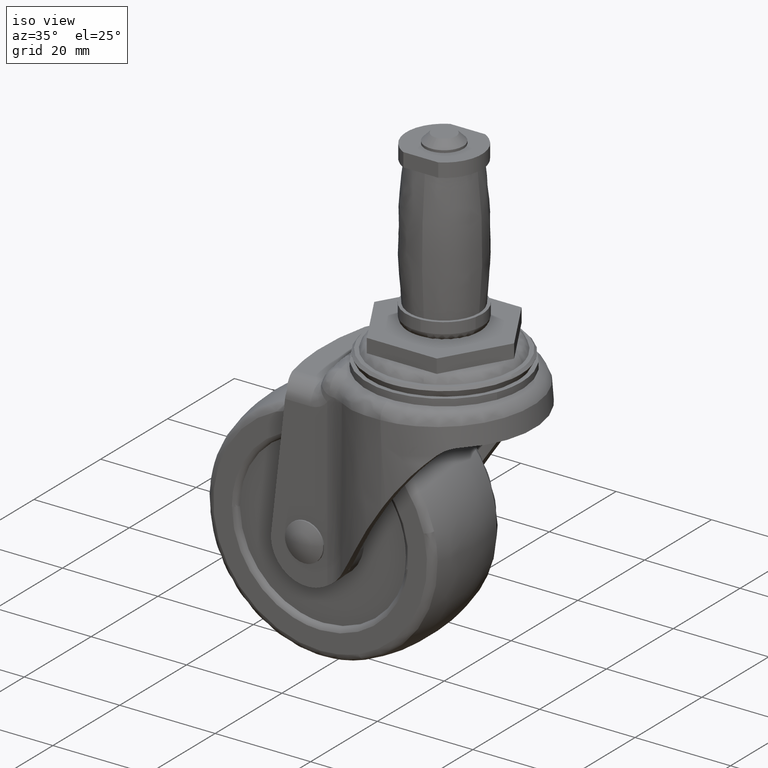
[diagram: clean part render]
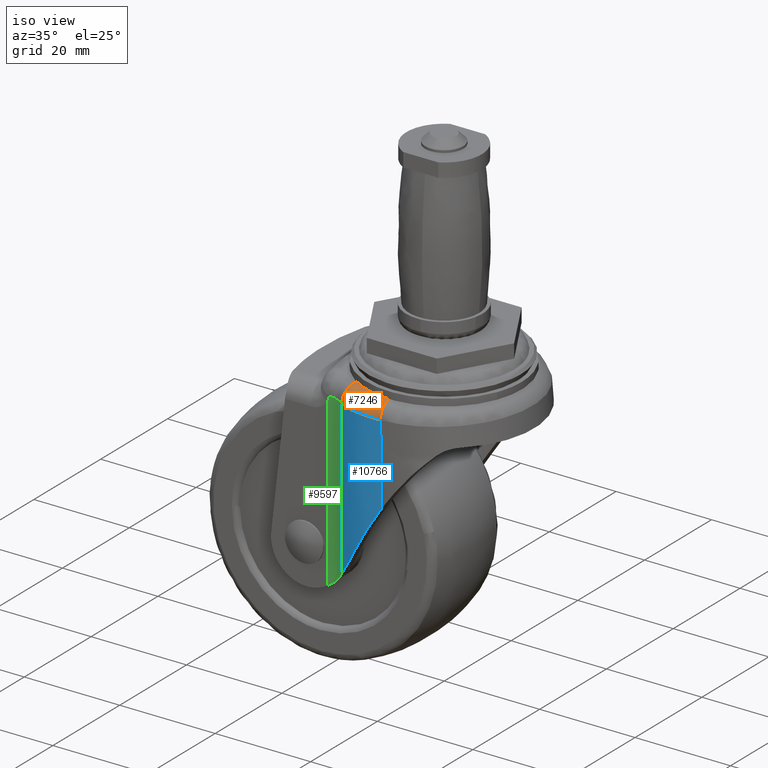
[diagram: same view with three faces highlighted in distinct colors, each labeled with its STEP entity id]
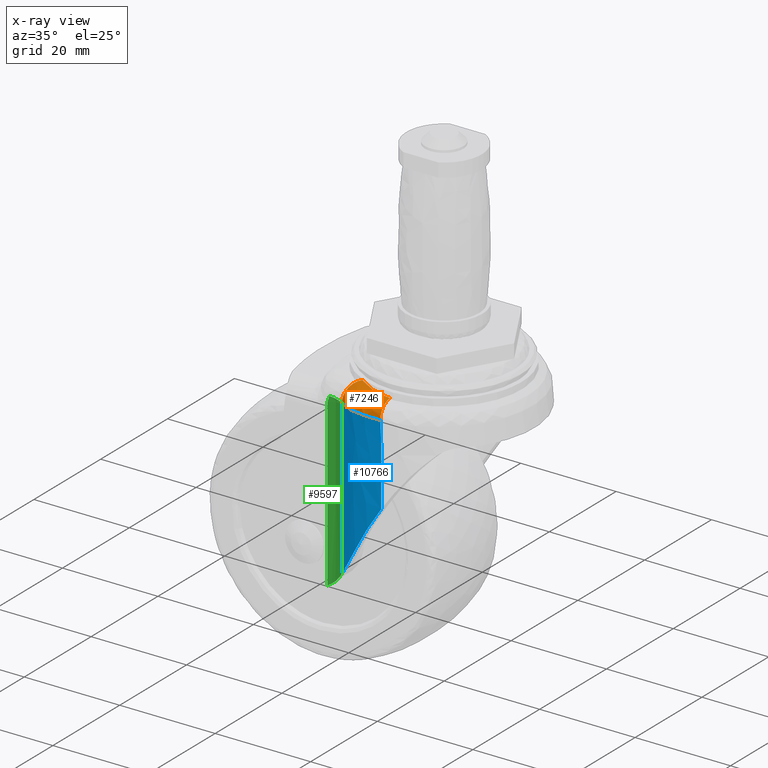
[diagram: x-ray of the same camera — body ghosted, the three highlighted faces saturated]
A machine part, iso view with three faces highlighted in distinct colors.
The next image is the same camera in x-ray (body ghosted, the three faces saturated) — at least one of them is partly hidden behind the body in this view.
Their STEP definitions:

[orange] entity #7246 — the highlighted face is a freeform B-spline surface patch.
#6770=CARTESIAN_POINT('',(-8.383213030865608,-12.559134390715680,-7.312300000000000));
#6771=VERTEX_POINT('',#6770);
#6785=CARTESIAN_POINT('',(-0.211372370271914,-15.849068563117299,-7.312300000000000));
#6786=VERTEX_POINT('',#6785);
#6787=CARTESIAN_POINT('',(-8.383213030865608,-12.559134390715680,-7.312300000000000));
#6788=CARTESIAN_POINT('',(-7.177303485113759,-13.364169880310939,-7.312300000000000));
#6789=CARTESIAN_POINT('',(-5.931820626869783,-14.168832538087489,-7.312300000000000));
#6790=CARTESIAN_POINT('',(-3.206027616540357,-15.399567878791959,-7.312300000000000));
#6791=CARTESIAN_POINT('',(-1.727469260014034,-15.824081219986789,-7.312300000000000));
#6792=CARTESIAN_POINT('',(-0.211372370271914,-15.849068563117299,-7.312300000000000));
#6793=B_SPLINE_CURVE_WITH_KNOTS('',3,(#6787,#6788,#6789,#6790,#6791,#6792),.UNSPECIFIED.,.F.,.U.,(4,2,4),(4.123810566571690,4.413260678950739,4.699069848030900),.UNSPECIFIED.);
#6794=EDGE_CURVE('',#6771,#6786,#6793,.T.);
#7000=CARTESIAN_POINT('',(-0.182389769335353,-18.849117659007849,-10.311114480009820));
#7001=VERTEX_POINT('',#7000);
#7002=CARTESIAN_POINT('',(-0.211372370271914,-15.849068563117299,-7.312300000000000));
#7003=CARTESIAN_POINT('',(-0.210237807720999,-15.971093918524870,-7.316662462801346));
#7004=CARTESIAN_POINT('',(-0.207947425915330,-16.217430846912499,-7.325469121737921));
#7005=CARTESIAN_POINT('',(-0.204943334447242,-16.583770299314210,-7.396451074912001));
#7006=CARTESIAN_POINT('',(-0.202107572756184,-16.942324863755339,-7.510387972674353));
#7007=CARTESIAN_POINT('',(-0.199428092200904,-17.284168686451380,-7.669468358368193));
#7008=CARTESIAN_POINT('',(-0.196858523776957,-17.601151239799311,-7.868305325126562));
#7009=CARTESIAN_POINT('',(-0.194389244729560,-17.886560287248201,-8.101080240298490));
#7010=CARTESIAN_POINT('',(-0.192028983281255,-18.135590543309728,-8.360299423948787));
#7011=CARTESIAN_POINT('',(-0.189807354588066,-18.345545298661250,-8.637963601605788));
#7012=CARTESIAN_POINT('',(-0.187768511980316,-18.515809786200069,-8.926109245842845));
#7013=CARTESIAN_POINT('',(-0.185968407724384,-18.647498075961138,-9.217397641641663));
#7014=CARTESIAN_POINT('',(-0.184461483575913,-18.743369576723129,-9.505493345620364));
#7015=CARTESIAN_POINT('',(-0.183323362625738,-18.806309511330209,-9.785271845508703));
#7016=CARTESIAN_POINT('',(-0.182553966103168,-18.842593746572120,-10.052863942191131));
#7017=CARTESIAN_POINT('',(-0.182443305103757,-18.846990560710481,-10.226912816560100));
#7018=CARTESIAN_POINT('',(-0.182389769335353,-18.849117659007849,-10.311114480009820));
#7019=B_SPLINE_CURVE_WITH_KNOTS('',3,(#7002,#7003,#7004,#7005,#7006,#7007,#7008,#7009,#7010,#7011,#7012,#7013,#7014,#7015,#7016,#7017,#7018),.UNSPECIFIED.,.F.,.U.,(4,1,1,1,1,1,1,1,1,1,1,1,1,1,4),(0.0,0.077721837109960,0.156899839040538,0.236883421437833,0.316978668292258,0.396482154498442,0.474715913578643,0.551059291738069,0.624974114141771,0.696020979994494,0.763866157475353,0.828280011573778,0.889128864233390,0.946362571467610,1.0),.UNSPECIFIED.);
#7020=EDGE_CURVE('',#6786,#7001,#7019,.T.);
#7176=CARTESIAN_POINT('',(-8.404645505113363,-12.513036577988908,-7.312300000000001));
#7177=CARTESIAN_POINT('',(-8.412007231123695,-12.523995219626814,-7.312300000000001));
#7178=CARTESIAN_POINT('',(-10.510518032672005,-15.647831642658453,-7.312300000000169));
#7179=CARTESIAN_POINT('',(-10.510518032671234,-15.647831642657561,-11.075845156037758));
#7180=CARTESIAN_POINT('',(-10.510518032671227,-15.647831642657547,-11.089349841149886));
#7181=CARTESIAN_POINT('',(-7.189476776308802,-13.323878658183853,-7.312300000000032));
#7182=CARTESIAN_POINT('',(-7.195755527805120,-13.335582319549202,-7.312300000000017));
#7183=CARTESIAN_POINT('',(-8.985643025359195,-16.672055127245148,-7.312299999996218));
#7184=CARTESIAN_POINT('',(-8.985618477341054,-16.672063107347640,-11.079608263239470));
#7185=CARTESIAN_POINT('',(-8.985618389248486,-16.672063135901848,-11.093126452079231));
#7186=CARTESIAN_POINT('',(-4.682926924409720,-14.956994352687678,-7.312299999999995));
#7187=CARTESIAN_POINT('',(-4.686252410594531,-14.968575716703695,-7.312299999999998));
#7188=CARTESIAN_POINT('',(-5.634636262165720,-18.271241789137441,-7.312300000002721));
#7189=CARTESIAN_POINT('',(-5.634512387646434,-18.271279572146156,-10.699488974655573));
#7190=CARTESIAN_POINT('',(-5.634511943342250,-18.271279707746597,-10.711643184419069));
#7191=CARTESIAN_POINT('',(-1.657747194422345,-15.822461098695797,-7.312299999999989));
#7192=CARTESIAN_POINT('',(-1.658820621436504,-15.833000868710474,-7.312299999999995));
#7193=CARTESIAN_POINT('',(-1.964722226014985,-18.837171531610707,-7.312300000001407));
#7194=CARTESIAN_POINT('',(-1.964747004376250,-18.837164300826462,-10.319369691102928));
#7195=CARTESIAN_POINT('',(-1.964747093248751,-18.837164274809673,-10.330159923525841));
#7196=CARTESIAN_POINT('',(-0.107127006570412,-15.828550908517062,-7.312300000000002));
#7197=CARTESIAN_POINT('',(-0.107199372650751,-15.839112075958774,-7.312300000000001));
#7198=CARTESIAN_POINT('',(-0.127827823240223,-18.849645736444533,-7.312299999999951));
#7199=CARTESIAN_POINT('',(-0.127827823240092,-18.849645736448853,-10.323136124597239));
#7200=CARTESIAN_POINT('',(-0.127827823240091,-18.849645736448849,-10.333939872686106));
#7208=(BOUNDED_SURFACE()B_SPLINE_SURFACE(2,3,((#7176,#7181,#7186,#7191,#7196),(#7177,#7182,#7187,#7192,#7197),(#7178,#7183,#7188,#7193,#7198),(#7179,#7184,#7189,#7194,#7199),(#7180,#7185,#7190,#7195,#7200)),.UNSPECIFIED.,.F.,.F.,.U.)B_SPLINE_SURFACE_WITH_KNOTS((3,1,1,3),(4,1,4),(0.0,0.031069665313071,6.244286631818673,6.276072532132730),(0.0,5.539953928075171,11.079956358023550),.UNSPECIFIED.)GEOMETRIC_REPRESENTATION_ITEM()RATIONAL_B_SPLINE_SURFACE(((1.002929269758342,1.002929269758342,1.002929269758342,1.002929269758342,1.002929269758342),(1.001464634879171,1.001464634879171,1.001464634879171,1.001464634879171,1.001464634879171),(0.707106781186542,0.707106781186542,0.707106781186542,0.707106781186542,0.707106781186542),(1.001498398447383,1.001498398447383,1.001498398447383,1.001498398447383,1.001498398447383),(1.002996796894767,1.002996796894767,1.002996796894767,1.002996796894767,1.002996796894767)))REPRESENTATION_ITEM('')SURFACE());
#7209=CARTESIAN_POINT('',(-10.465135058398459,-15.678124719535800,-11.062300000000000));
#7210=VERTEX_POINT('',#7209);
#7211=CARTESIAN_POINT('',(-8.383213030865599,-12.559134390715659,-7.312300000000001));
#7212=CARTESIAN_POINT('',(-8.655735986992438,-12.967409270033960,-7.312300000000000));
#7213=CARTESIAN_POINT('',(-8.928151716973323,-13.375523510621401,-7.409902462493821));
#7214=CARTESIAN_POINT('',(-9.431708479583438,-14.129917119902769,-7.785601043671550));
#7215=CARTESIAN_POINT('',(-9.662651384129472,-14.475899666925580,-8.063549341006853));
#7216=CARTESIAN_POINT('',(-10.048057044742050,-15.053287538433739,-8.757749800094123));
#7217=CARTESIAN_POINT('',(-10.202368160138750,-15.284465685447280,-9.173728823609194));
#7218=CARTESIAN_POINT('',(-10.410948200636540,-15.596945749779209,-10.080745433652790));
#7219=CARTESIAN_POINT('',(-10.465135058398481,-15.678124719535800,-10.571426147876711));
#7220=CARTESIAN_POINT('',(-10.465135058398459,-15.678124719535800,-11.062300000000000));
#7221=B_SPLINE_CURVE_WITH_KNOTS('',3,(#7211,#7212,#7213,#7214,#7215,#7216,#7217,#7218,#7219,#7220),.UNSPECIFIED.,.F.,.U.,(4,2,2,2,4),(0.0,0.250000000000000,0.500000000000000,0.750000000000000,1.0),.UNSPECIFIED.);
#7222=EDGE_CURVE('',#6771,#7210,#7221,.T.);
#7223=ORIENTED_EDGE('',*,*,#7222,.T.);
#7224=CARTESIAN_POINT('',(-0.182389769335353,-18.849117659007849,-10.311114480009820));
#7225=CARTESIAN_POINT('',(-0.348100169288524,-18.846246994115649,-10.312083123256800));
#7226=CARTESIAN_POINT('',(-0.687651906391582,-18.840364808983860,-10.314067938315100));
#7227=CARTESIAN_POINT('',(-1.208505415445920,-18.813564030270999,-10.328991850013590));
#7228=CARTESIAN_POINT('',(-1.752575687250061,-18.771161671907912,-10.352498304947851));
#7229=CARTESIAN_POINT('',(-2.319229932209976,-18.709782151253609,-10.385627205157791));
#7230=CARTESIAN_POINT('',(-3.079059685756224,-18.603764950820700,-10.440185134944951));
#7231=CARTESIAN_POINT('',(-4.168193660943765,-18.400393555297210,-10.540288733840510));
#7232=CARTESIAN_POINT('',(-5.561342117924522,-18.034392253784311,-10.686703356631609));
#7233=CARTESIAN_POINT('',(-6.918735320681720,-17.552121837207888,-10.833089817916671));
#7234=CARTESIAN_POINT('',(-8.049856913622506,-17.055847099440118,-10.944763637300831));
#7235=CARTESIAN_POINT('',(-8.948434744029953,-16.598924322060590,-11.011975858877960));
#7236=CARTESIAN_POINT('',(-9.739476545350316,-16.148995440766111,-11.053846681285179));
#7237=CARTESIAN_POINT('',(-10.229575313288230,-15.830976488072171,-11.059555924700129));
#7238=CARTESIAN_POINT('',(-10.465135058398459,-15.678124719535800,-11.062300000000000));
#7239=B_SPLINE_CURVE_WITH_KNOTS('',3,(#7224,#7225,#7226,#7227,#7228,#7229,#7230,#7231,#7232,#7233,#7234,#7235,#7236,#7237,#7238),.UNSPECIFIED.,.F.,.U.,(4,1,1,1,1,1,1,1,1,1,1,1,4),(0.0,0.045439792641525,0.093109186444500,0.143021498337684,0.195188324170596,0.249619815510264,0.353870070712294,0.500009982099818,0.646119768825975,0.750400158362071,0.839838263047028,0.923020296313347,1.0),.UNSPECIFIED.);
#7240=EDGE_CURVE('',#7001,#7210,#7239,.T.);
#7241=ORIENTED_EDGE('',*,*,#7240,.F.);
#7242=ORIENTED_EDGE('',*,*,#7020,.F.);
#7243=ORIENTED_EDGE('',*,*,#6794,.F.);
#7244=EDGE_LOOP('',(#7223,#7241,#7242,#7243));
#7245=FACE_OUTER_BOUND('',#7244,.T.);
#7246=ADVANCED_FACE('',(#7245),#7208,.T.);

[blue] entity #10766 — the highlighted face is a freeform B-spline surface patch.
#7000=CARTESIAN_POINT('',(-0.182389769335353,-18.849117659007849,-10.311114480009820));
#7001=VERTEX_POINT('',#7000);
#7209=CARTESIAN_POINT('',(-10.465135058398459,-15.678124719535800,-11.062300000000000));
#7210=VERTEX_POINT('',#7209);
#7224=CARTESIAN_POINT('',(-0.182389769335353,-18.849117659007849,-10.311114480009820));
#7225=CARTESIAN_POINT('',(-0.348100169288524,-18.846246994115649,-10.312083123256800));
#7226=CARTESIAN_POINT('',(-0.687651906391582,-18.840364808983860,-10.314067938315100));
#7227=CARTESIAN_POINT('',(-1.208505415445920,-18.813564030270999,-10.328991850013590));
#7228=CARTESIAN_POINT('',(-1.752575687250061,-18.771161671907912,-10.352498304947851));
#7229=CARTESIAN_POINT('',(-2.319229932209976,-18.709782151253609,-10.385627205157791));
#7230=CARTESIAN_POINT('',(-3.079059685756224,-18.603764950820700,-10.440185134944951));
#7231=CARTESIAN_POINT('',(-4.168193660943765,-18.400393555297210,-10.540288733840510));
#7232=CARTESIAN_POINT('',(-5.561342117924522,-18.034392253784311,-10.686703356631609));
#7233=CARTESIAN_POINT('',(-6.918735320681720,-17.552121837207888,-10.833089817916671));
#7234=CARTESIAN_POINT('',(-8.049856913622506,-17.055847099440118,-10.944763637300831));
#7235=CARTESIAN_POINT('',(-8.948434744029953,-16.598924322060590,-11.011975858877960));
#7236=CARTESIAN_POINT('',(-9.739476545350316,-16.148995440766111,-11.053846681285179));
#7237=CARTESIAN_POINT('',(-10.229575313288230,-15.830976488072171,-11.059555924700129));
#7238=CARTESIAN_POINT('',(-10.465135058398459,-15.678124719535800,-11.062300000000000));
#7239=B_SPLINE_CURVE_WITH_KNOTS('',3,(#7224,#7225,#7226,#7227,#7228,#7229,#7230,#7231,#7232,#7233,#7234,#7235,#7236,#7237,#7238),.UNSPECIFIED.,.F.,.U.,(4,1,1,1,1,1,1,1,1,1,1,1,4),(0.0,0.045439792641525,0.093109186444500,0.143021498337684,0.195188324170596,0.249619815510264,0.353870070712294,0.500009982099818,0.646119768825975,0.750400158362071,0.839838263047028,0.923020296313347,1.0),.UNSPECIFIED.);
#7240=EDGE_CURVE('',#7001,#7210,#7239,.T.);
#9555=CARTESIAN_POINT('',(-10.465135058397060,-15.678124719536751,-43.384241657274302));
#9556=VERTEX_POINT('',#9555);
#9557=CARTESIAN_POINT('',(-10.465135058398459,-15.678124719535800,-11.062300000000000));
#9558=CARTESIAN_POINT('',(-10.465135058397060,-15.678124719536751,-43.384241657274302));
#9559=QUASI_UNIFORM_CURVE('',1,(#9557,#9558),.UNSPECIFIED.,.F.,.U.);
#9560=EDGE_CURVE('',#7210,#9556,#9559,.T.);
#10507=CARTESIAN_POINT('',(-0.000006999999924,-18.850000000000001,-14.777769023008300));
#10508=VERTEX_POINT('',#10507);
#10509=CARTESIAN_POINT('',(-0.000006999999924,-18.850000000000001,-14.777769023008300));
#10510=CARTESIAN_POINT('',(-0.091200518985394,-18.850000000000001,-12.544389480890827));
#10511=CARTESIAN_POINT('',(-0.182389769335353,-18.849117659007849,-10.311114480009820));
#10519=(BOUNDED_CURVE()B_SPLINE_CURVE(2,(#10509,#10510,#10511),.UNSPECIFIED.,.F.,.U.)CURVE()GEOMETRIC_REPRESENTATION_ITEM()QUASI_UNIFORM_CURVE()RATIONAL_B_SPLINE_CURVE((1.0,0.999988297787741,1.0))REPRESENTATION_ITEM(''));
#10520=EDGE_CURVE('',#10508,#7001,#10519,.T.);
#10689=CARTESIAN_POINT('',(-0.000006999999927,-18.850000000000001,-27.160310200695349));
#10690=VERTEX_POINT('',#10689);
#10691=CARTESIAN_POINT('',(-0.000006999999927,-18.850000000000001,-27.160310200695349));
#10692=CARTESIAN_POINT('',(-0.000006999999924,-18.850000000000001,-14.777769023008300));
#10693=QUASI_UNIFORM_CURVE('',1,(#10691,#10692),.UNSPECIFIED.,.F.,.U.);
#10694=EDGE_CURVE('',#10690,#10508,#10693,.T.);
#10713=CARTESIAN_POINT('',(0.542918170010456,-18.842179604806049,-44.211069836705910));
#10714=CARTESIAN_POINT('',(0.542918170010456,-18.842179604806049,-9.463615596092417));
#10715=CARTESIAN_POINT('',(-5.768215821030058,-19.024030832578539,-44.211069836705924));
#10716=CARTESIAN_POINT('',(-5.768215821030058,-19.024030832578539,-9.463615596092417));
#10717=CARTESIAN_POINT('',(-10.915640067216108,-15.367870859097431,-44.211069836705917));
#10718=CARTESIAN_POINT('',(-10.915640067216108,-15.367870859097431,-9.463615596092417));
#10726=(BOUNDED_SURFACE()B_SPLINE_SURFACE(1,2,((#10713,#10715,#10717),(#10714,#10716,#10718)),.UNSPECIFIED.,.F.,.F.,.U.)B_SPLINE_SURFACE_WITH_KNOTS((2,2),(3,3),(0.0,34.747454240613507),(0.0,12.291866134695530),.UNSPECIFIED.)GEOMETRIC_REPRESENTATION_ITEM()RATIONAL_B_SPLINE_SURFACE(((0.999612161126330,0.944206886009153,0.991931353035312),(0.999612161126330,0.944206886009153,0.991931353035312)))REPRESENTATION_ITEM('')SURFACE());
#10727=ORIENTED_EDGE('',*,*,#10520,.T.);
#10728=ORIENTED_EDGE('',*,*,#7240,.T.);
#10729=ORIENTED_EDGE('',*,*,#9560,.T.);
#10730=CARTESIAN_POINT('',(-6.217047098077460,-17.795249714991250,-36.966512076518200));
#10731=VERTEX_POINT('',#10730);
#10732=CARTESIAN_POINT('',(-10.465135058397090,-15.678124719536751,-43.384241657274274));
#10733=CARTESIAN_POINT('',(-10.371114776758869,-15.740883136441321,-43.259409596890393));
#10734=CARTESIAN_POINT('',(-10.277159210735251,-15.802373366714439,-43.133699561103690));
#10735=CARTESIAN_POINT('',(-10.090036859994990,-15.922504796924249,-42.881376356287859));
#10736=CARTESIAN_POINT('',(-9.810274283632314,-16.098603246886711,-42.501189998187243));
#10737=CARTESIAN_POINT('',(-9.533388704796451,-16.262892043182759,-42.115961677298003));
#10738=CARTESIAN_POINT('',(-8.983730735488040,-16.576890697434560,-41.338930810481507));
#10739=CARTESIAN_POINT('',(-8.622782816191750,-16.766816002994979,-40.812149217087082));
#10740=CARTESIAN_POINT('',(-7.558344317837843,-17.286340376382260,-39.206509357191159));
#10741=CARTESIAN_POINT('',(-6.873313550998736,-17.565973078342399,-38.102400471519317));
#10742=CARTESIAN_POINT('',(-6.217047098077460,-17.795249714991250,-36.966512076518200));
#10743=B_SPLINE_CURVE_WITH_KNOTS('',3,(#10732,#10733,#10734,#10735,#10736,#10737,#10738,#10739,#10740,#10741,#10742),.UNSPECIFIED.,.F.,.U.,(4,2,1,2,2,4),(0.0,0.062500000000000,0.125000000000000,0.250000000000000,0.499999999999999,1.0),.UNSPECIFIED.);
#10744=EDGE_CURVE('',#9556,#10731,#10743,.T.);
#10745=ORIENTED_EDGE('',*,*,#10744,.T.);
#10746=CARTESIAN_POINT('',(-0.000006999999950,-18.850000000000001,-27.160310200695339));
#10747=CARTESIAN_POINT('',(-0.277810841262152,-18.850000000000001,-27.561043428622270));
#10748=CARTESIAN_POINT('',(-0.553919413042018,-18.843861439823382,-27.963765507577811));
#10749=CARTESIAN_POINT('',(-0.965497312515265,-18.825758595275381,-28.570826074070460));
#10750=CARTESIAN_POINT('',(-1.102259145497739,-18.818241310773381,-28.773675877672151));
#10751=CARTESIAN_POINT('',(-1.374914491110040,-18.800287104553540,-29.180367545835740));
#10752=CARTESIAN_POINT('',(-1.510847800478632,-18.789844657138989,-29.384271033703630));
#10753=CARTESIAN_POINT('',(-2.186529902612339,-18.730618041518071,-30.403541025706541));
#10754=CARTESIAN_POINT('',(-2.715741522425987,-18.660764546179990,-31.220257315878239));
#10755=CARTESIAN_POINT('',(-3.752463441956598,-18.480216938539510,-32.856672802269188));
#10756=CARTESIAN_POINT('',(-4.259972060262772,-18.369514215097439,-33.676371001133553));
#10757=CARTESIAN_POINT('',(-5.254056401263298,-18.110254545489170,-35.318992072064120));
#10758=CARTESIAN_POINT('',(-5.740631024285553,-17.961692888398229,-36.141914499543923));
#10759=CARTESIAN_POINT('',(-6.217047098077450,-17.795249714991250,-36.966512076518207));
#10760=B_SPLINE_CURVE_WITH_KNOTS('',3,(#10746,#10747,#10748,#10749,#10750,#10751,#10752,#10753,#10754,#10755,#10756,#10757,#10758,#10759),.UNSPECIFIED.,.F.,.U.,(4,2,2,2,2,2,4),(0.0,0.124999999999999,0.187499999999999,0.249999999999999,0.499999999999999,0.749999999999999,1.0),.UNSPECIFIED.);
#10761=EDGE_CURVE('',#10690,#10731,#10760,.T.);
#10762=ORIENTED_EDGE('',*,*,#10761,.F.);
#10763=ORIENTED_EDGE('',*,*,#10694,.T.);
#10764=EDGE_LOOP('',(#10727,#10728,#10729,#10745,#10762,#10763));
#10765=FACE_OUTER_BOUND('',#10764,.T.);
#10766=ADVANCED_FACE('',(#10765),#10726,.T.);

[green] entity #9597 — the highlighted face is a freeform B-spline surface patch.
#7209=CARTESIAN_POINT('',(-10.465135058398459,-15.678124719535800,-11.062300000000000));
#7210=VERTEX_POINT('',#7209);
#7364=CARTESIAN_POINT('',(-13.920182243606860,-14.513534031262800,-11.062300000000000));
#7365=VERTEX_POINT('',#7364);
#7402=CARTESIAN_POINT('',(-10.465135058398451,-15.678124719535790,-11.062300000000000));
#7403=CARTESIAN_POINT('',(-12.035590498471118,-14.629847735880325,-11.062300000000004));
#7404=CARTESIAN_POINT('',(-13.920182243606860,-14.513534031262790,-11.062300000000000));
#7412=(BOUNDED_CURVE()B_SPLINE_CURVE(2,(#7402,#7403,#7404),.UNSPECIFIED.,.F.,.U.)CURVE()GEOMETRIC_REPRESENTATION_ITEM()QUASI_UNIFORM_CURVE()RATIONAL_B_SPLINE_CURVE((1.0,0.965492307214122,1.0))REPRESENTATION_ITEM(''));
#7413=EDGE_CURVE('',#7210,#7365,#7412,.T.);
#7887=CARTESIAN_POINT('',(-14.351389509793160,-14.500240000000000,-12.355357293252199));
#7888=VERTEX_POINT('',#7887);
#7902=CARTESIAN_POINT('',(-13.920182243606860,-14.513534031262800,-11.062300000000000));
#7903=CARTESIAN_POINT('',(-13.965394471128389,-14.510743611698141,-11.286207617997301));
#7904=CARTESIAN_POINT('',(-14.023243402336160,-14.507570823148869,-11.506174740504450));
#7905=CARTESIAN_POINT('',(-14.130314616752401,-14.503640725148840,-11.829812646594259));
#7906=CARTESIAN_POINT('',(-14.169404969498990,-14.502475453190330,-11.936634606640281));
#7907=CARTESIAN_POINT('',(-14.254875490707750,-14.500774872605451,-12.148015176778390));
#7908=CARTESIAN_POINT('',(-14.301292135574499,-14.500240000000000,-12.252623813707361));
#7909=CARTESIAN_POINT('',(-14.351389509793160,-14.500240000000000,-12.355357293252199));
#7910=B_SPLINE_CURVE_WITH_KNOTS('',3,(#7902,#7903,#7904,#7905,#7906,#7907,#7908,#7909),.UNSPECIFIED.,.F.,.U.,(4,2,2,4),(0.0,0.500000000000001,0.750000000000001,1.0),.UNSPECIFIED.);
#7911=EDGE_CURVE('',#7365,#7888,#7910,.T.);
#9541=CARTESIAN_POINT('',(-14.534628147948281,-14.502638725171099,-48.039190364240369));
#9542=CARTESIAN_POINT('',(-14.534628147948281,-14.502638725171099,-10.137877740893989));
#9543=CARTESIAN_POINT('',(-12.201238232209199,-14.441536759847232,-48.039190364240369));
#9544=CARTESIAN_POINT('',(-12.201238232209199,-14.441536759847232,-10.137877740893991));
#9545=CARTESIAN_POINT('',(-10.298162720270074,-15.793108269201046,-48.039190364240369));
#9546=CARTESIAN_POINT('',(-10.298162720270074,-15.793108269201046,-10.137877740893989));
#9554=(BOUNDED_SURFACE()B_SPLINE_SURFACE(1,2,((#9541,#9543,#9545),(#9542,#9544,#9546)),.UNSPECIFIED.,.F.,.F.,.U.)B_SPLINE_SURFACE_WITH_KNOTS((2,2),(3,3),(0.0,37.901312623346392),(0.0,4.545353726473279),.UNSPECIFIED.)GEOMETRIC_REPRESENTATION_ITEM()RATIONAL_B_SPLINE_SURFACE(((1.0,0.947147875500152,0.996838850593435),(1.0,0.947147875500152,0.996838850593435)))REPRESENTATION_ITEM('')SURFACE());
#9555=CARTESIAN_POINT('',(-10.465135058397060,-15.678124719536751,-43.384241657274302));
#9556=VERTEX_POINT('',#9555);
#9557=CARTESIAN_POINT('',(-10.465135058398459,-15.678124719535800,-11.062300000000000));
#9558=CARTESIAN_POINT('',(-10.465135058397060,-15.678124719536751,-43.384241657274302));
#9559=QUASI_UNIFORM_CURVE('',1,(#9557,#9558),.UNSPECIFIED.,.F.,.U.);
#9560=EDGE_CURVE('',#7210,#9556,#9559,.T.);
#9561=ORIENTED_EDGE('',*,*,#9560,.F.);
#9562=ORIENTED_EDGE('',*,*,#7413,.T.);
#9563=ORIENTED_EDGE('',*,*,#7911,.T.);
#9564=CARTESIAN_POINT('',(-14.351389509793160,-14.500240000000000,-47.137314989502798));
#9565=VERTEX_POINT('',#9564);
#9566=CARTESIAN_POINT('',(-14.351389509793160,-14.500240000000000,-47.137314989502798));
#9567=CARTESIAN_POINT('',(-14.351389509793160,-14.500240000000000,-12.355357293252199));
#9568=QUASI_UNIFORM_CURVE('',1,(#9566,#9567),.UNSPECIFIED.,.F.,.U.);
#9569=EDGE_CURVE('',#9565,#7888,#9568,.T.);
#9570=ORIENTED_EDGE('',*,*,#9569,.F.);
#9571=CARTESIAN_POINT('',(-11.164195731720181,-15.267921344715100,-44.295090351913252));
#9572=VERTEX_POINT('',#9571);
#9573=CARTESIAN_POINT('',(-11.164195731720159,-15.267921344715051,-44.295090351913252));
#9574=CARTESIAN_POINT('',(-11.380035222863050,-15.157541513181620,-44.571102771195243));
#9575=CARTESIAN_POINT('',(-11.607618651441850,-15.055271295300450,-44.837290785753993));
#9576=CARTESIAN_POINT('',(-12.087065246146880,-14.871609993976330,-45.350616488935657));
#9577=CARTESIAN_POINT('',(-12.338922107611030,-14.790190315267701,-45.597752020169509));
#9578=CARTESIAN_POINT('',(-12.868563081342060,-14.653633716628020,-46.072902305550969));
#9579=CARTESIAN_POINT('',(-13.146332138339780,-14.598453379676450,-46.300919531292827));
#9580=CARTESIAN_POINT('',(-13.584540407522571,-14.540811294309449,-46.628054229770918));
#9581=CARTESIAN_POINT('',(-13.734600291386020,-14.525795533148271,-46.734855932687537));
#9582=CARTESIAN_POINT('',(-14.039244078745419,-14.505537019099521,-46.941226862812492));
#9583=CARTESIAN_POINT('',(-14.194054975564880,-14.500240000000000,-47.040990911452873));
#9584=CARTESIAN_POINT('',(-14.351389509793160,-14.500240000000000,-47.137314989502798));
#9585=B_SPLINE_CURVE_WITH_KNOTS('',3,(#9573,#9574,#9575,#9576,#9577,#9578,#9579,#9580,#9581,#9582,#9583,#9584),.UNSPECIFIED.,.F.,.U.,(4,2,2,2,2,4),(0.0,0.249999999999999,0.499999999999998,0.749999999999997,0.874999999999999,1.0),.UNSPECIFIED.);
#9586=EDGE_CURVE('',#9572,#9565,#9585,.T.);
#9587=ORIENTED_EDGE('',*,*,#9586,.F.);
#9588=CARTESIAN_POINT('',(-10.465135058397060,-15.678124719536751,-43.384241657274302));
#9589=CARTESIAN_POINT('',(-10.692212621743630,-15.526550738456599,-43.685735756262730));
#9590=CARTESIAN_POINT('',(-10.925225646459181,-15.390130110186650,-43.989498847735241));
#9591=CARTESIAN_POINT('',(-11.164195731720181,-15.267921344715100,-44.295090351913252));
#9592=QUASI_UNIFORM_CURVE('',3,(#9588,#9589,#9590,#9591),.UNSPECIFIED.,.F.,.U.);
#9593=EDGE_CURVE('',#9556,#9572,#9592,.T.);
#9594=ORIENTED_EDGE('',*,*,#9593,.F.);
#9595=EDGE_LOOP('',(#9561,#9562,#9563,#9570,#9587,#9594));
#9596=FACE_OUTER_BOUND('',#9595,.T.);
#9597=ADVANCED_FACE('',(#9596),#9554,.F.);